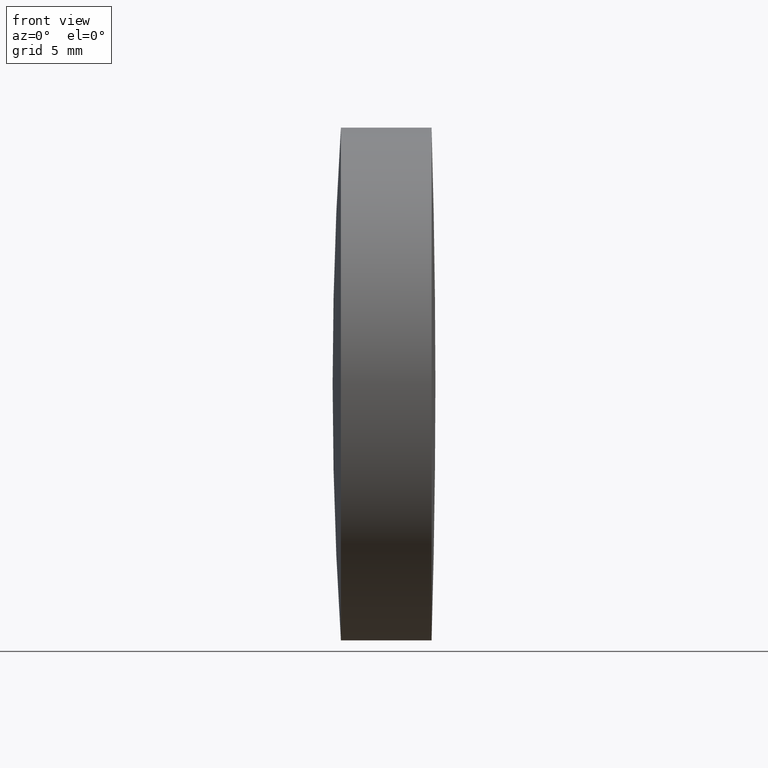
[diagram: clean part render]
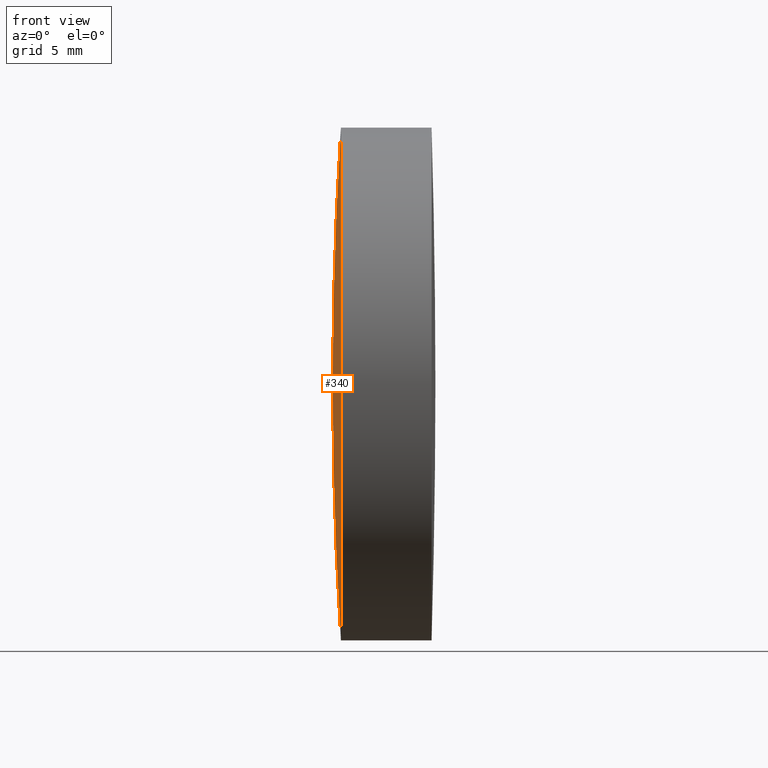
[diagram: same view with one face highlighted and labeled with its STEP entity id]
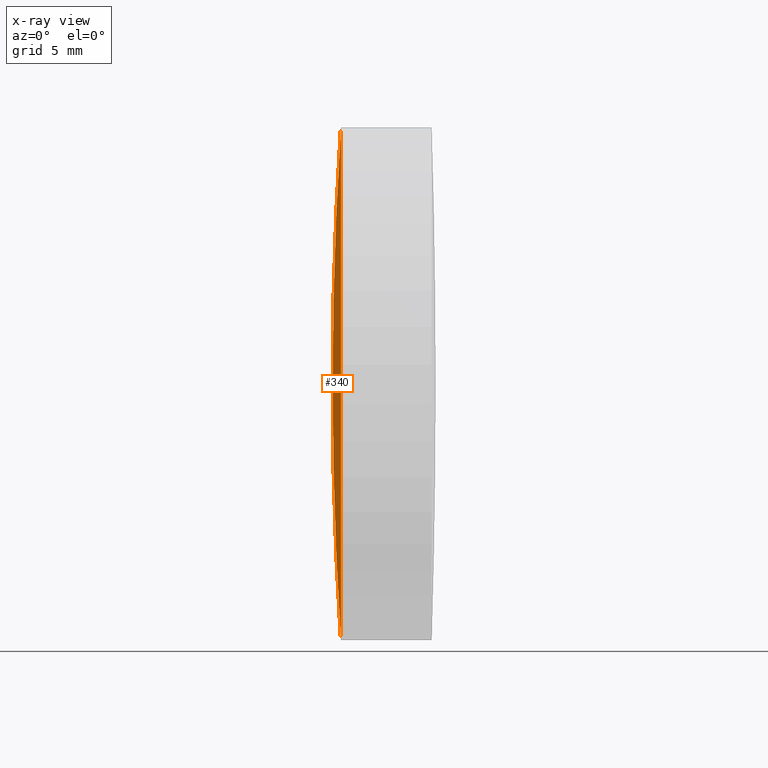
[diagram: x-ray of the same camera — body ghosted, the highlighted face saturated]
A machine part, front view. The second image highlights one B-rep face of the part: STEP entity #340.
The next image is the same camera in x-ray: the body ghosted, the highlighted face saturated — about 0% of this face is hidden behind the body in this view.
In plain terms, the highlighted spherical surface has radius 193.67 mm.
Its self-contained STEP definition (entity closure, byte-faithful):
#12 = CIRCLE ( 'NONE', #17, 193.6699999999999000 ) ;
#17 = AXIS2_PLACEMENT_3D ( 'NONE', #110, #149, #316 ) ;
#22 = ORIENTED_EDGE ( 'NONE', *, *, #111, .F. ) ;
#32 = CARTESIAN_POINT ( 'NONE',  ( 139.6496689735747900, 0.0000000000000000000, 1.183921663207332100E-014 ) ) ;
#46 = VERTEX_POINT ( 'NONE', #32 ) ;
#57 = CARTESIAN_POINT ( 'NONE',  ( 333.3196689735746600, 0.0000000000000000000, -1.965064747006724300E-017 ) ) ;
#60 = AXIS2_PLACEMENT_3D ( 'NONE', #97, #79, #128 ) ;
#66 = EDGE_CURVE ( 'NONE', #244, #200, #161, .T. ) ;
#79 = DIRECTION ( 'NONE',  ( -1.000000000000000000, -0.0000000000000000000, -0.0000000000000000000 ) ) ;
#97 = CARTESIAN_POINT ( 'NONE',  ( 140.0534823293508600, 0.0000000000000000000, 0.0000000000000000000 ) ) ;
#106 = CARTESIAN_POINT ( 'NONE',  ( 333.3196689735746600, 0.0000000000000000000, -1.965064747006724300E-017 ) ) ;
#110 = CARTESIAN_POINT ( 'NONE',  ( 333.3196689735746600, 0.0000000000000000000, -1.965064747006724300E-017 ) ) ;
#111 = EDGE_CURVE ( 'NONE', #244, #46, #168, .T. ) ;
#119 = DIRECTION ( 'NONE',  ( 0.0000000000000000000, 0.0000000000000000000, 1.000000000000000000 ) ) ;
#128 = DIRECTION ( 'NONE',  ( 0.0000000000000000000, 0.0000000000000000000, 1.000000000000000000 ) ) ;
#149 = DIRECTION ( 'NONE',  ( 0.0000000000000000000, -1.000000000000000000, 0.0000000000000000000 ) ) ;
#154 = ORIENTED_EDGE ( 'NONE', *, *, #194, .T. ) ;
#161 = CIRCLE ( 'NONE', #60, 12.50000000000000000 ) ;
#168 = CIRCLE ( 'NONE', #323, 193.6699999999999000 ) ;
#184 = AXIS2_PLACEMENT_3D ( 'NONE', #57, #307, #119 ) ;
#194 = EDGE_CURVE ( 'NONE', #200, #46, #12, .T. ) ;
#200 = VERTEX_POINT ( 'NONE', #203 ) ;
#203 = CARTESIAN_POINT ( 'NONE',  ( 140.0534823293508600, 0.0000000000000000000, 12.50000000000007300 ) ) ;
#214 = DIRECTION ( 'NONE',  ( -0.0000000000000000000, 1.000000000000000000, 1.224646799147353200E-016 ) ) ;
#244 = VERTEX_POINT ( 'NONE', #265 ) ;
#265 = CARTESIAN_POINT ( 'NONE',  ( 140.0534823293508600, 1.530808498934200400E-015, -12.50000000000007300 ) ) ;
#293 = ORIENTED_EDGE ( 'NONE', *, *, #66, .T. ) ;
#303 = DIRECTION ( 'NONE',  ( 0.0000000000000000000, -1.224646799147353200E-016, 1.000000000000000000 ) ) ;
#306 = SPHERICAL_SURFACE ( 'NONE', #184, 193.6699999999999000 ) ;
#307 = DIRECTION ( 'NONE',  ( 0.0000000000000000000, 1.000000000000000000, 0.0000000000000000000 ) ) ;
#316 = DIRECTION ( 'NONE',  ( 0.0000000000000000000, 0.0000000000000000000, -1.000000000000000000 ) ) ;
#323 = AXIS2_PLACEMENT_3D ( 'NONE', #106, #214, #303 ) ;
#328 = FACE_OUTER_BOUND ( 'NONE', #347, .T. ) ;
#340 = ADVANCED_FACE ( 'NONE', ( #328 ), #306, .T. ) ;
#347 = EDGE_LOOP ( 'NONE', ( #22, #293, #154 ) ) ;